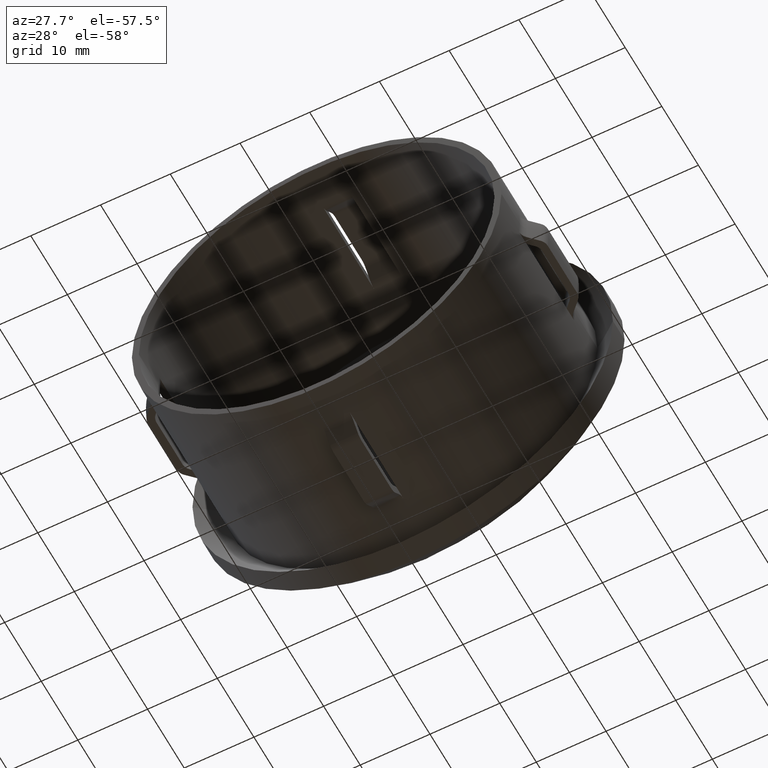
[diagram: clean part render]
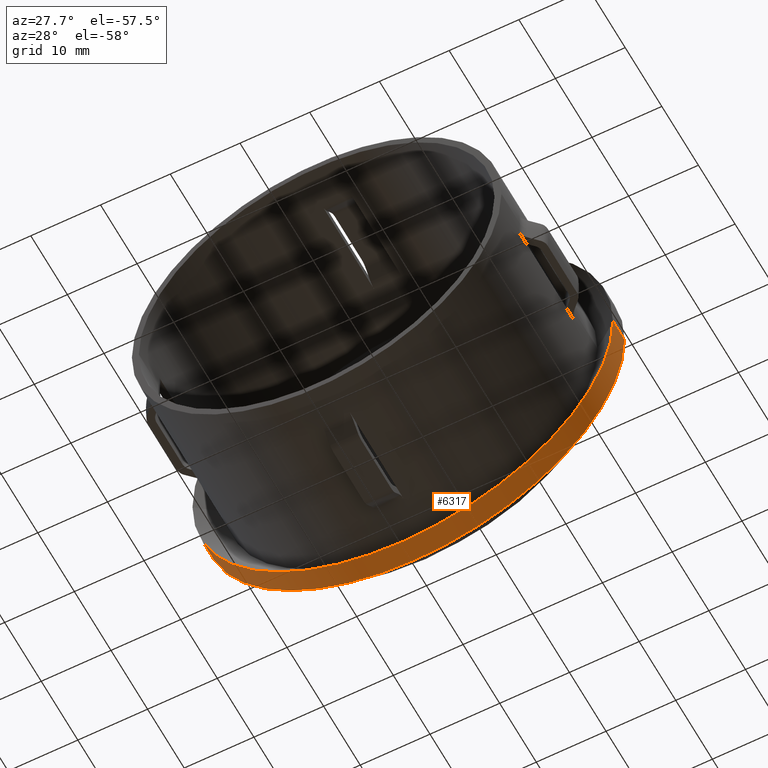
[diagram: same view with one face highlighted and labeled with its STEP entity id]
A machine part, auxiliary view. The second image highlights one B-rep face of the part: STEP entity #6317.
In plain terms, the highlighted cylindrical surface (partial cylindrical patch) has radius 30.15 mm, axis along (-0, -1, -0).
Its self-contained STEP definition (entity closure, byte-faithful):
#1205 = DIRECTION ( 'NONE',  ( 1.000000000000000000, -2.646675950080698700E-015, 0.0000000000000000000 ) ) ;
#1246 = VERTEX_POINT ( 'NONE', #10220 ) ;
#2146 = DIRECTION ( 'NONE',  ( 1.000000000000000000, -2.761748817475512400E-015, 0.0000000000000000000 ) ) ;
#2217 = LINE ( 'NONE', #10098, #7038 ) ;
#2232 = EDGE_CURVE ( 'NONE', #14686, #6009, #9994, .T. ) ;
#2350 = AXIS2_PLACEMENT_3D ( 'NONE', #12440, #9007, #2146 ) ;
#2579 = AXIS2_PLACEMENT_3D ( 'NONE', #4926, #12955, #14042 ) ;
#3023 = CYLINDRICAL_SURFACE ( 'NONE', #2350, 30.15000000000001600 ) ;
#3407 = VERTEX_POINT ( 'NONE', #5682 ) ;
#3428 = CARTESIAN_POINT ( 'NONE',  ( 30.14999999999999500, 26.68705930499264100, 0.0000000000000000000 ) ) ;
#3678 = ORIENTED_EDGE ( 'NONE', *, *, #8339, .F. ) ;
#4926 = CARTESIAN_POINT ( 'NONE',  ( -2.054825225314336700E-014, 26.68705930499272600, 0.0000000000000000000 ) ) ;
#5424 = CIRCLE ( 'NONE', #2579, 30.15000000000001300 ) ;
#5682 = CARTESIAN_POINT ( 'NONE',  ( -30.14999999999993100, 23.50459780463493700, 3.692310099429272800E-015 ) ) ;
#6009 = VERTEX_POINT ( 'NONE', #12073 ) ;
#6317 = ADVANCED_FACE ( 'NONE', ( #11165 ), #3023, .T. ) ;
#6440 = CARTESIAN_POINT ( 'NONE',  ( 30.15000000000001600, 34.29999999999991200, 0.0000000000000000000 ) ) ;
#7038 = VECTOR ( 'NONE', #10144, 1000.000000000000000 ) ;
#7103 = CARTESIAN_POINT ( 'NONE',  ( -2.913810265591313300E-014, 23.50459780463485500, 0.0000000000000000000 ) ) ;
#7164 = VECTOR ( 'NONE', #13587, 1000.000000000000000 ) ;
#7301 = ORIENTED_EDGE ( 'NONE', *, *, #12109, .F. ) ;
#8339 = EDGE_CURVE ( 'NONE', #3407, #6009, #12907, .T. ) ;
#8344 = ORIENTED_EDGE ( 'NONE', *, *, #2232, .T. ) ;
#8348 = EDGE_LOOP ( 'NONE', ( #7301, #13879, #8344, #3678 ) ) ;
#8360 = AXIS2_PLACEMENT_3D ( 'NONE', #7103, #9080, #1205 ) ;
#9007 = DIRECTION ( 'NONE',  ( -2.699121545320764300E-015, -1.000000000000000000, -0.0000000000000000000 ) ) ;
#9080 = DIRECTION ( 'NONE',  ( -2.699121545320764300E-015, -1.000000000000000000, -0.0000000000000000000 ) ) ;
#9994 = LINE ( 'NONE', #6440, #7164 ) ;
#10098 = CARTESIAN_POINT ( 'NONE',  ( -30.15000000000001600, 34.30000000000008200, 3.692310099429272800E-015 ) ) ;
#10144 = DIRECTION ( 'NONE',  ( -2.699121545320764300E-015, -1.000000000000000000, -0.0000000000000000000 ) ) ;
#10220 = CARTESIAN_POINT ( 'NONE',  ( -30.14999999999991300, 26.68705930499280000, 3.692310099429272000E-015 ) ) ;
#11165 = FACE_OUTER_BOUND ( 'NONE', #8348, .T. ) ;
#12073 = CARTESIAN_POINT ( 'NONE',  ( 30.14999999999999900, 23.50459780463477700, 0.0000000000000000000 ) ) ;
#12109 = EDGE_CURVE ( 'NONE', #1246, #3407, #2217, .T. ) ;
#12440 = CARTESIAN_POINT ( 'NONE',  ( 0.0000000000000000000, 34.29999999999999700, 0.0000000000000000000 ) ) ;
#12907 = CIRCLE ( 'NONE', #8360, 30.15000000000002300 ) ;
#12955 = DIRECTION ( 'NONE',  ( -2.699121545320764300E-015, -1.000000000000000000, -0.0000000000000000000 ) ) ;
#13587 = DIRECTION ( 'NONE',  ( -2.699121545320764300E-015, -1.000000000000000000, -0.0000000000000000000 ) ) ;
#13879 = ORIENTED_EDGE ( 'NONE', *, *, #14403, .T. ) ;
#14042 = DIRECTION ( 'NONE',  ( 1.000000000000000000, -2.646675950080699500E-015, 0.0000000000000000000 ) ) ;
#14403 = EDGE_CURVE ( 'NONE', #1246, #14686, #5424, .T. ) ;
#14686 = VERTEX_POINT ( 'NONE', #3428 ) ;